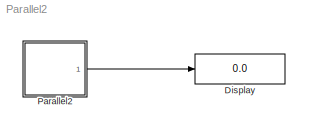
MODEL Parallel2
KIND model
CONFIG AbsTol = auto
CONFIG FixedStep = auto
CONFIG MaxStep = auto
CONFIG MinStep = auto
CONFIG RelTol = 1e-3
CONFIG Solver = ode45
CONFIG SolverMode = Auto
CONFIG StartTime = 0.0
CONFIG StopTime = 10.0
BLOCK [Display] Display
  Decimation = 1
  Ports = [1]
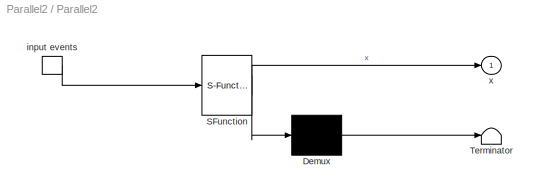
BLOCK [SubSystem] Parallel2
  MaskDescription = Stateflow diagram
  MaskDisplay = plot(sf('Private','sfblk','xIcon'),sf('Private','sfblk','yIcon'));text(0.5,0,sf('Private', 'sfblk', 'tIcon'),'HorizontalAl','Center','VerticalAl','Bottom');
  MaskIconFrame = off
  MaskIconOpaque = off
  MaskIconRotate = none
  MaskIconUnits = autoscale
  MaskSelfModifiable = on
  MaskType = Stateflow
  Ports = [0, 1, 0, 1]
  TreatAsAtomicUnit = off
BLOCK [Demux] Parallel2/ Demux 
  Outputs = 1
  Ports = [1, 1]
BLOCK [S-Function] Parallel2/ SFunction 
  FunctionName = sf_sfun
  PortCounts = [1 2]
  Ports = [1, 2]
  Tag = Stateflow S-Function Parallel2 1
BLOCK [Terminator] Parallel2/ Terminator 
BLOCK [TriggerPort] Parallel2/ input events 
  Ports = [0, 1]
  ShowOutputPort = on
  TriggerType = either
BLOCK [Outport] Parallel2/x
LINE Parallel2/ Demux :1 -> Parallel2/ Terminator :1
LINE Parallel2/ SFunction :1 -> Parallel2/ Demux :1
LINE Parallel2/ SFunction :2 -> Parallel2/x:1
LINE Parallel2/ input events :1 -> Parallel2/ SFunction :1
LINE Parallel2:1 -> Display:1
CHART Parallel2 states=7 transitions=7
  STATE_LABEL 'N1/\\nen:x+=10000;\\nex:x-=10000;'
  STATE_LABEL 'N2/\\nen:x+=100000;\\nex:x-=100000;'
  STATE_LABEL 'A/\\nen: x+=10;'
  STATE_LABEL 'B/\\nen: x-=10;'
  STATE_LABEL 'C/\\nen: x+=1000;'
  STATE_LABEL 'D/\\nen: x-=1000;'
  STATE_LABEL 'TOP/ en:x+=1000000; ex:x-=1000000;'
